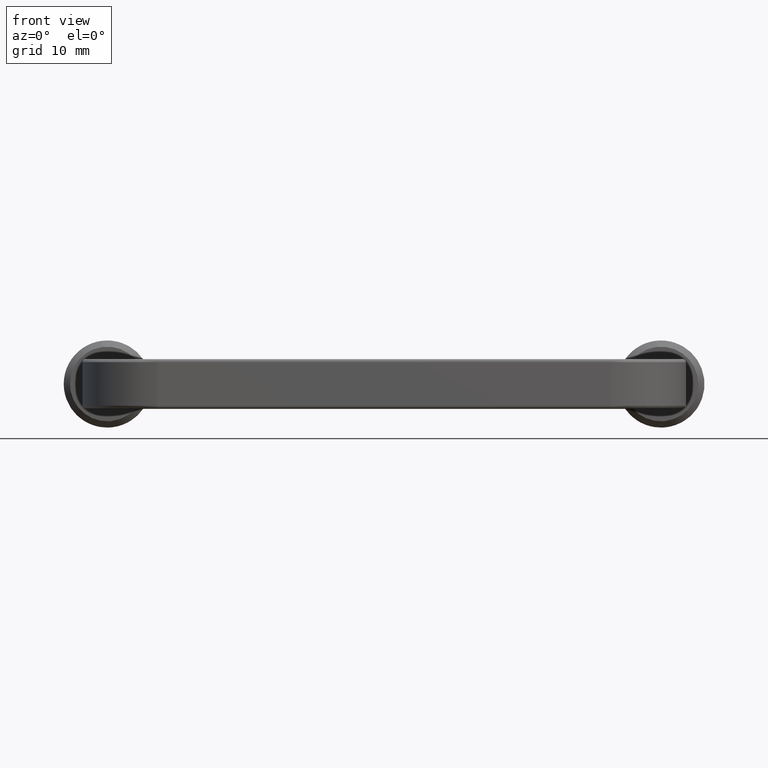
[diagram: clean part render]
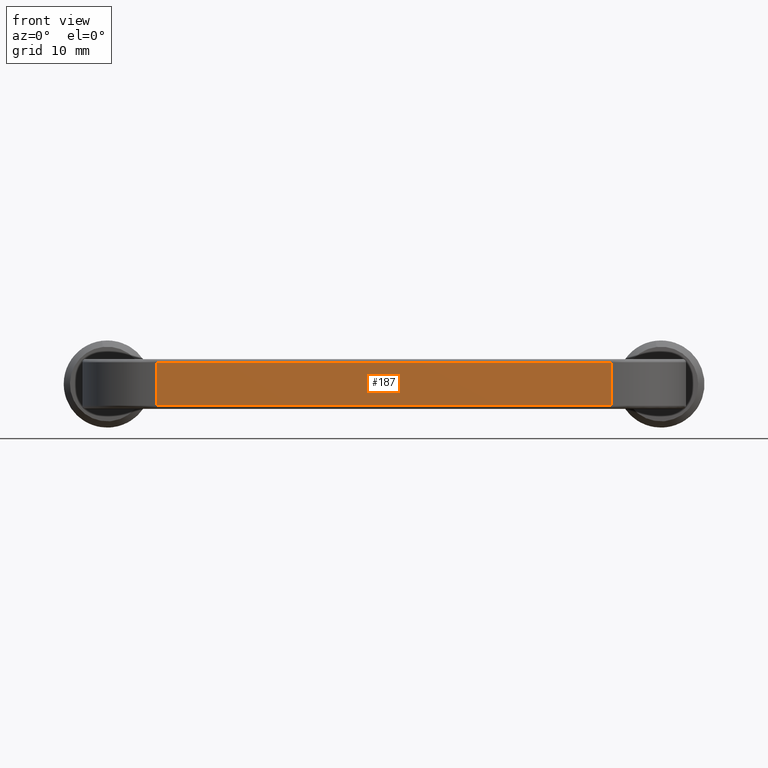
[diagram: same view with one face highlighted and labeled with its STEP entity id]
A machine part, front view. The second image highlights one B-rep face of the part: STEP entity #187.
In plain terms, the highlighted planar face has unit normal (0, -1, 0).
Its self-contained STEP definition (entity closure, byte-faithful):
#187=ADVANCED_FACE('',(#418),#417,.T.);
#417=PLANE('',#938);
#418=FACE_OUTER_BOUND('',#939,.T.);
#935=CARTESIAN_POINT('',(-4.38000000000E+01,4.20000000000E+00,5.50000000000E+01));
#936=DIRECTION('',(-0.00000000000E+00,0.00000000000E+00,1.00000000000E+00));
#937=DIRECTION('',(0.00000000000E+00,-1.00000000000E+00,0.00000000000E+00));
#938=AXIS2_PLACEMENT_3D('',#935,#936,#937);
#939=EDGE_LOOP('',(#1303,#1304,#1305,#1306));
#1303=ORIENTED_EDGE('',*,*,#1494,.F.);
#1304=ORIENTED_EDGE('',*,*,#1507,.F.);
#1305=ORIENTED_EDGE('',*,*,#1508,.T.);
#1306=ORIENTED_EDGE('',*,*,#1509,.T.);
#1494=EDGE_CURVE('',#1855,#1862,#1863,.T.);
#1507=EDGE_CURVE('',#1947,#1855,#1948,.T.);
#1508=EDGE_CURVE('',#1947,#1954,#1955,.T.);
#1509=EDGE_CURVE('',#1954,#1862,#1961,.T.);
#1855=VERTEX_POINT('',#2545);
#1862=VERTEX_POINT('',#2550);
#1863=LINE('',#2551,#2552);
#1947=VERTEX_POINT('',#2607);
#1948=LINE('',#2608,#2609);
#1954=VERTEX_POINT('',#2611);
#1955=LINE('',#2612,#2613);
#1961=LINE('',#2615,#2616);
#2545=CARTESIAN_POINT('',(3.65000000000E+01,3.50000000000E+00,5.50000000000E+01));
#2550=CARTESIAN_POINT('',(3.65000000000E+01,-3.50000000000E+00,5.50000000000E+01));
#2551=CARTESIAN_POINT('',(3.65000000000E+01,3.50000000000E+00,5.50000000000E+01));
#2552=VECTOR('',#2553,7.00000000000E+00);
#2553=DIRECTION('',(0.00000000000E+00,-1.00000000000E+00,0.00000000000E+00));
#2607=CARTESIAN_POINT('',(-3.65000000000E+01,3.50000000000E+00,5.50000000000E+01));
#2608=CARTESIAN_POINT('',(-3.65000000000E+01,3.50000000000E+00,5.50000000000E+01));
#2609=VECTOR('',#2610,7.30000000000E+01);
#2610=DIRECTION('',(1.00000000000E+00,0.00000000000E+00,0.00000000000E+00));
#2611=CARTESIAN_POINT('',(-3.65000000000E+01,-3.50000000000E+00,5.50000000000E+01));
#2612=CARTESIAN_POINT('',(-3.65000000000E+01,3.50000000000E+00,5.50000000000E+01));
#2613=VECTOR('',#2614,7.00000000000E+00);
#2614=DIRECTION('',(0.00000000000E+00,-1.00000000000E+00,0.00000000000E+00));
#2615=CARTESIAN_POINT('',(-3.65000000000E+01,-3.50000000000E+00,5.50000000000E+01));
#2616=VECTOR('',#2617,7.30000000000E+01);
#2617=DIRECTION('',(1.00000000000E+00,2.73753622510E-16,0.00000000000E+00));